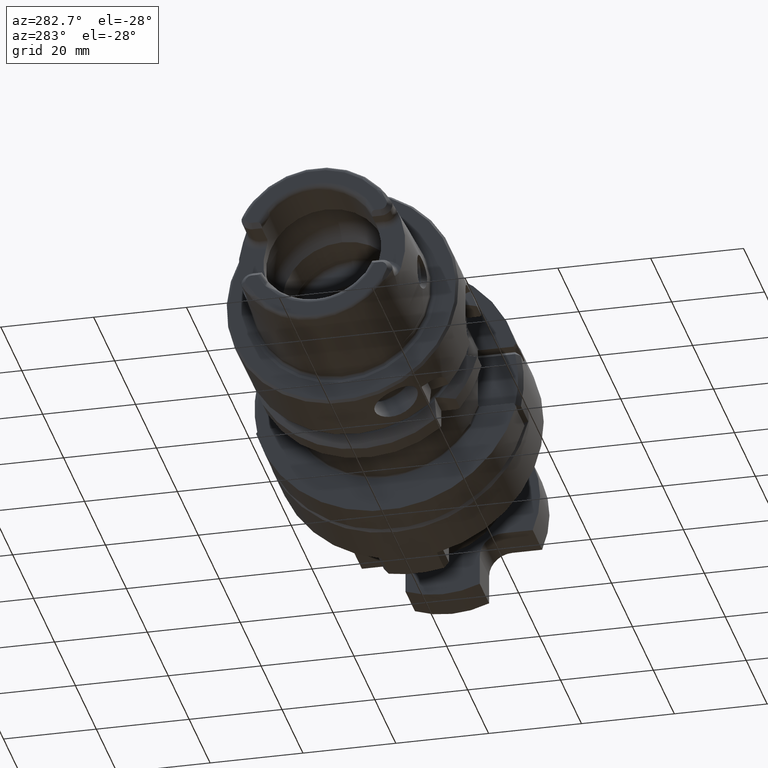
[diagram: clean part render]
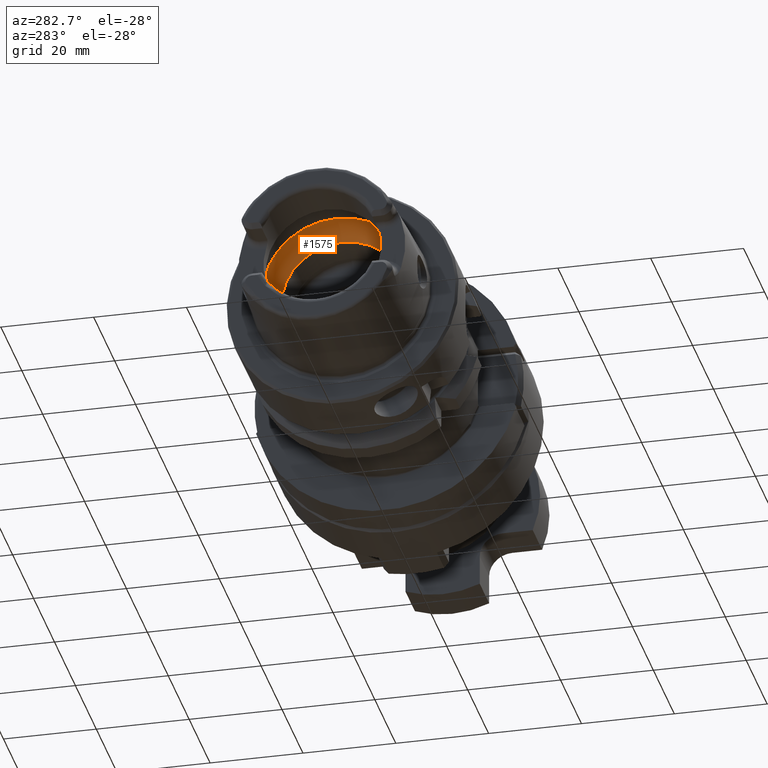
[diagram: same view with one face highlighted and labeled with its STEP entity id]
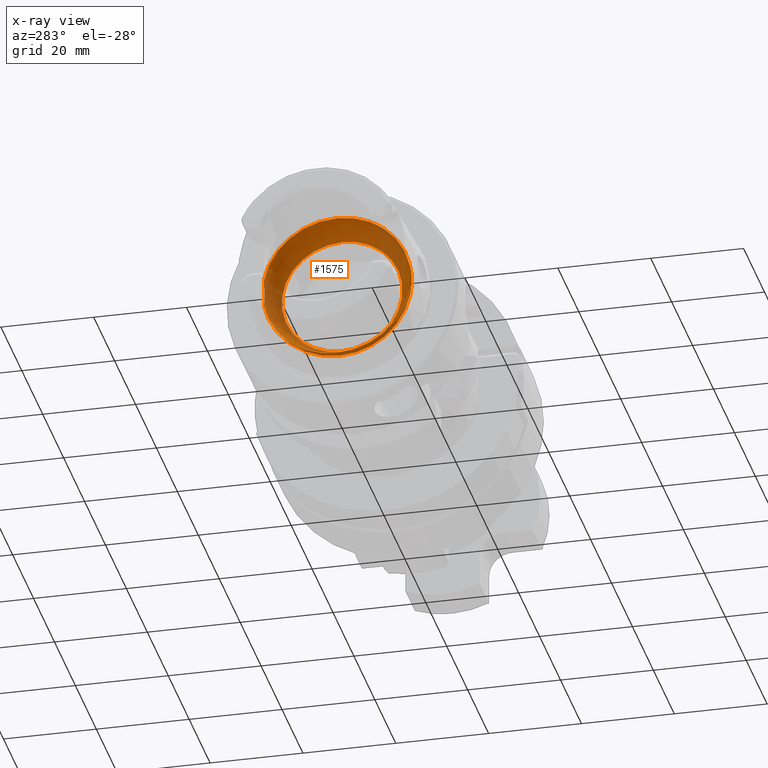
[diagram: x-ray of the same camera — body ghosted, the highlighted face saturated]
A machine part, auxiliary view. The second image highlights one B-rep face of the part: STEP entity #1575.
The next image is the same camera in x-ray: the body ghosted, the highlighted face saturated — about 26% of this face is hidden behind the body in this view.
In plain terms, the highlighted toroidal blend (fillet) surface has major radius 10 mm and minor (blend) radius 6 mm.
Its self-contained STEP definition (entity closure, byte-faithful):
#1575 = ADVANCED_FACE( '', ( #3025, #3026 ), #3027, .F. );
#3025 = FACE_OUTER_BOUND( '', #3849, .T. );
#3026 = FACE_OUTER_BOUND( '', #3850, .T. );
#3027 = TOROIDAL_SURFACE( '', #3851, 10.0000000000000, 6.00000000000000 );
#3849 = EDGE_LOOP( '', ( #4944, #4945, #4946, #4947 ) );
#3850 = EDGE_LOOP( '', ( #4948 ) );
#3851 = AXIS2_PLACEMENT_3D( '', #4949, #4950, #4951 );
#4944 = ORIENTED_EDGE( '', *, *, #7439, .F. );
#4945 = ORIENTED_EDGE( '', *, *, #7440, .T. );
#4946 = ORIENTED_EDGE( '', *, *, #7436, .F. );
#4947 = ORIENTED_EDGE( '', *, *, #7441, .T. );
#4948 = ORIENTED_EDGE( '', *, *, #7442, .F. );
#4949 = CARTESIAN_POINT( '', ( -5.19615242270663, 0.000000000000000, 0.000000000000000 ) );
#4950 = DIRECTION( '', ( -1.00000000000000, 0.000000000000000, 0.000000000000000 ) );
#4951 = DIRECTION( '', ( 0.000000000000000, 0.000000000000000, 1.00000000000000 ) );
#7436 = EDGE_CURVE( '', #8208, #8209, #8210, .T. );
#7439 = EDGE_CURVE( '', #8214, #8215, #8216, .T. );
#7440 = EDGE_CURVE( '', #8214, #8209, #8217, .T. );
#7441 = EDGE_CURVE( '', #8208, #8215, #8218, .T. );
#7442 = EDGE_CURVE( '', #8219, #8219, #8220, .T. );
#8208 = VERTEX_POINT( '', #8949 );
#8209 = VERTEX_POINT( '', #8950 );
#8210 = B_SPLINE_CURVE_WITH_KNOTS( '', 3, ( #8951, #8952, #8953, #8954, #8955, #8956, #8957, #8958, #8959, #8960, #8961, #8962, #8963, #8964, #8965, #8966 ), .UNSPECIFIED., .F., .F., ( 4, 2, 2, 2, 2, 2, 2, 4 ), ( 2.82927991038358E-007, 0.00167890039209146, 0.00251820912414167, 0.00335751785619187, 0.00419682658824208, 0.00503613532029229, 0.00587544405234250, 0.00671475278439271 ), .UNSPECIFIED. );
#8214 = VERTEX_POINT( '', #9029 );
#8215 = VERTEX_POINT( '', #9030 );
#8216 = B_SPLINE_CURVE_WITH_KNOTS( '', 3, ( #9031, #9032, #9033, #9034, #9035, #9036, #9037, #9038, #9039, #9040, #9041, #9042, #9043, #9044, #9045, #9046 ), .UNSPECIFIED., .F., .F., ( 4, 2, 2, 2, 2, 2, 2, 4 ), ( 2.82927991038709E-007, 0.00167890039209145, 0.00251820912414166, 0.00335751785619187, 0.00419682658824208, 0.00503613532029229, 0.00587544405234250, 0.00671475278439271 ), .UNSPECIFIED. );
#8217 = CIRCLE( '', #9047, 16.0000000000000 );
#8218 = CIRCLE( '', #9048, 16.0000000000000 );
#8219 = VERTEX_POINT( '', #9049 );
#8220 = CIRCLE( '', #9050, 13.0000000000000 );
#8949 = CARTESIAN_POINT( '', ( -5.19615242270663, 15.7158492127861, -3.00201324463622 ) );
#8950 = CARTESIAN_POINT( '', ( -5.19615242270660, 15.7158492127861, 3.00201324463620 ) );
#8951 = CARTESIAN_POINT( '', ( -5.19615242270664, 15.7158492127861, -3.00201324463621 ) );
#8952 = CARTESIAN_POINT( '', ( -4.80062825720299, 15.7922195129693, -2.60220683999789 ) );
#8953 = CARTESIAN_POINT( '', ( -4.46560351003690, 15.8227950843843, -2.15336568234813 ) );
#8954 = CARTESIAN_POINT( '', ( -4.10198023756501, 15.8425265398205, -1.38248011313564 ) );
#8955 = CARTESIAN_POINT( '', ( -4.00824099657974, 15.8445934383637, -1.11743388258886 ) );
#8956 = CARTESIAN_POINT( '', ( -3.88017223530522, 15.8463825742062, -0.569920641036619 ) );
#8957 = CARTESIAN_POINT( '', ( -3.84641475832213, 15.8461527437350, -0.284312142356151 ) );
#8958 = CARTESIAN_POINT( '', ( -3.84589364055272, 15.8461525146299, 0.277537205749337 ) );
#8959 = CARTESIAN_POINT( '', ( -3.87784811380342, 15.8463920423742, 0.556424800284579 ) );
#8960 = CARTESIAN_POINT( '', ( -4.00573586498097, 15.8446505830442, 1.11015280560017 ) );
#8961 = CARTESIAN_POINT( '', ( -4.09992751474750, 15.8425741737703, 1.37676788320805 ) );
#8962 = CARTESIAN_POINT( '', ( -4.33910566035796, 15.8297211211643, 1.88650816507080 ) );
#8963 = CARTESIAN_POINT( '', ( -4.48583419634926, 15.8187036488413, 2.13205278183627 ) );
#8964 = CARTESIAN_POINT( '', ( -4.81507111608156, 15.7808655561514, 2.58882591749631 ) );
#8965 = CARTESIAN_POINT( '', ( -4.99816184305348, 15.7540784825010, 2.80187907154042 ) );
#8966 = CARTESIAN_POINT( '', ( -5.19615242270538, 15.7158492127870, 3.00201324463725 ) );
#9029 = CARTESIAN_POINT( '', ( -5.19615242270663, -15.7158492127861, 3.00201324463622 ) );
#9030 = CARTESIAN_POINT( '', ( -5.19615242270660, -15.7158492127861, -3.00201324463618 ) );
#9031 = CARTESIAN_POINT( '', ( -5.19615242270664, -15.7158492127861, 3.00201324463622 ) );
#9032 = CARTESIAN_POINT( '', ( -4.80062825720299, -15.7922195129693, 2.60220683999790 ) );
#9033 = CARTESIAN_POINT( '', ( -4.46560351003690, -15.8227950843843, 2.15336568234814 ) );
#9034 = CARTESIAN_POINT( '', ( -4.10198023756500, -15.8425265398205, 1.38248011313565 ) );
#9035 = CARTESIAN_POINT( '', ( -4.00824099657974, -15.8445934383637, 1.11743388258886 ) );
#9036 = CARTESIAN_POINT( '', ( -3.88017223530522, -15.8463825742062, 0.569920641036625 ) );
#9037 = CARTESIAN_POINT( '', ( -3.84641475832213, -15.8461527437350, 0.284312142356158 ) );
#9038 = CARTESIAN_POINT( '', ( -3.84589364055272, -15.8461525146299, -0.277537205749329 ) );
#9039 = CARTESIAN_POINT( '', ( -3.87784811380342, -15.8463920423742, -0.556424800284573 ) );
#9040 = CARTESIAN_POINT( '', ( -4.00573586498097, -15.8446505830442, -1.11015280560017 ) );
#9041 = CARTESIAN_POINT( '', ( -4.09992751474749, -15.8425741737703, -1.37676788320804 ) );
#9042 = CARTESIAN_POINT( '', ( -4.33910566035795, -15.8297211211643, -1.88650816507079 ) );
#9043 = CARTESIAN_POINT( '', ( -4.48583419634926, -15.8187036488413, -2.13205278183626 ) );
#9044 = CARTESIAN_POINT( '', ( -4.81507111608155, -15.7808655561514, -2.58882591749630 ) );
#9045 = CARTESIAN_POINT( '', ( -4.99816184305348, -15.7540784825010, -2.80187907154041 ) );
#9046 = CARTESIAN_POINT( '', ( -5.19615242270538, -15.7158492127870, -3.00201324463724 ) );
#9047 = AXIS2_PLACEMENT_3D( '', #10307, #10308, #10309 );
#9048 = AXIS2_PLACEMENT_3D( '', #10310, #10311, #10312 );
#9049 = CARTESIAN_POINT( '', ( 0.000000000000000, 0.000000000000000, 13.0000000000000 ) );
#9050 = AXIS2_PLACEMENT_3D( '', #10313, #10314, #10315 );
#10307 = CARTESIAN_POINT( '', ( -5.19615242270663, 0.000000000000000, 0.000000000000000 ) );
#10308 = DIRECTION( '', ( -1.00000000000000, 0.000000000000000, 0.000000000000000 ) );
#10309 = DIRECTION( '', ( 0.000000000000000, 0.000000000000000, 1.00000000000000 ) );
#10310 = CARTESIAN_POINT( '', ( -5.19615242270663, 0.000000000000000, 0.000000000000000 ) );
#10311 = DIRECTION( '', ( -1.00000000000000, 0.000000000000000, 0.000000000000000 ) );
#10312 = DIRECTION( '', ( 0.000000000000000, 0.000000000000000, 1.00000000000000 ) );
#10313 = CARTESIAN_POINT( '', ( 0.000000000000000, 0.000000000000000, 0.000000000000000 ) );
#10314 = DIRECTION( '', ( -1.00000000000000, 0.000000000000000, 0.000000000000000 ) );
#10315 = DIRECTION( '', ( 0.000000000000000, 0.000000000000000, 1.00000000000000 ) );